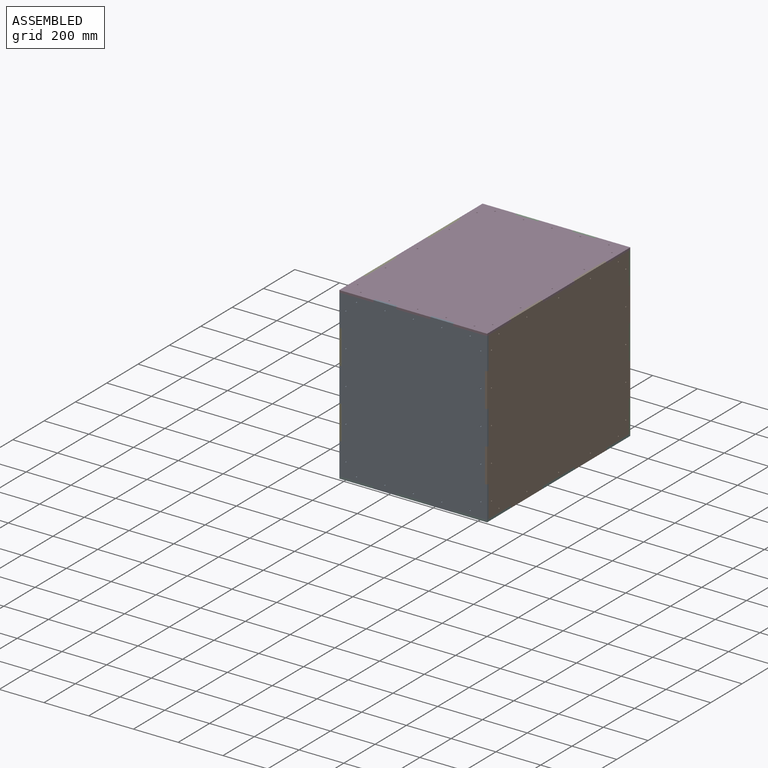
[diagram: assembled view]
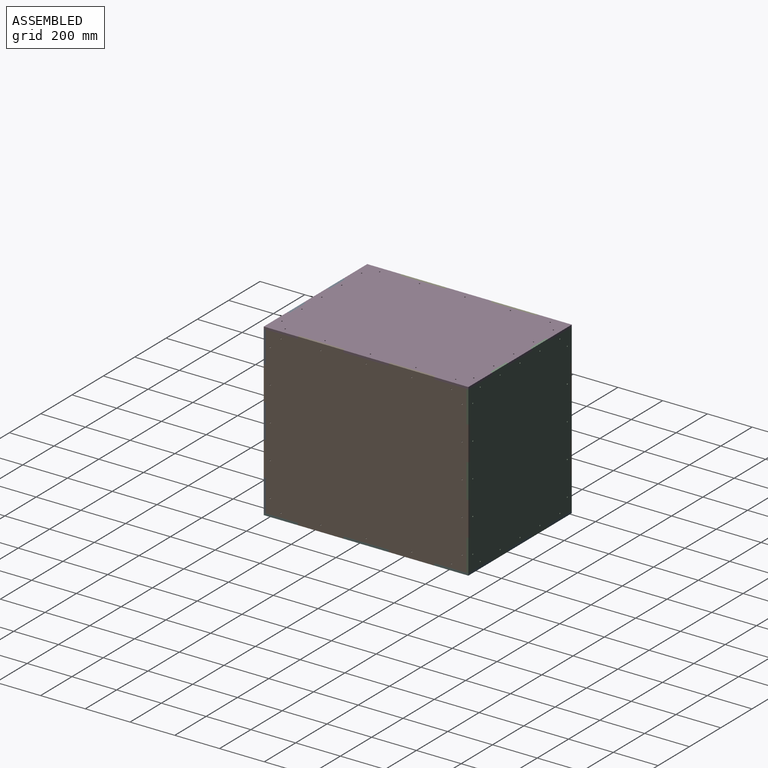
[diagram: assembled view, second angle]
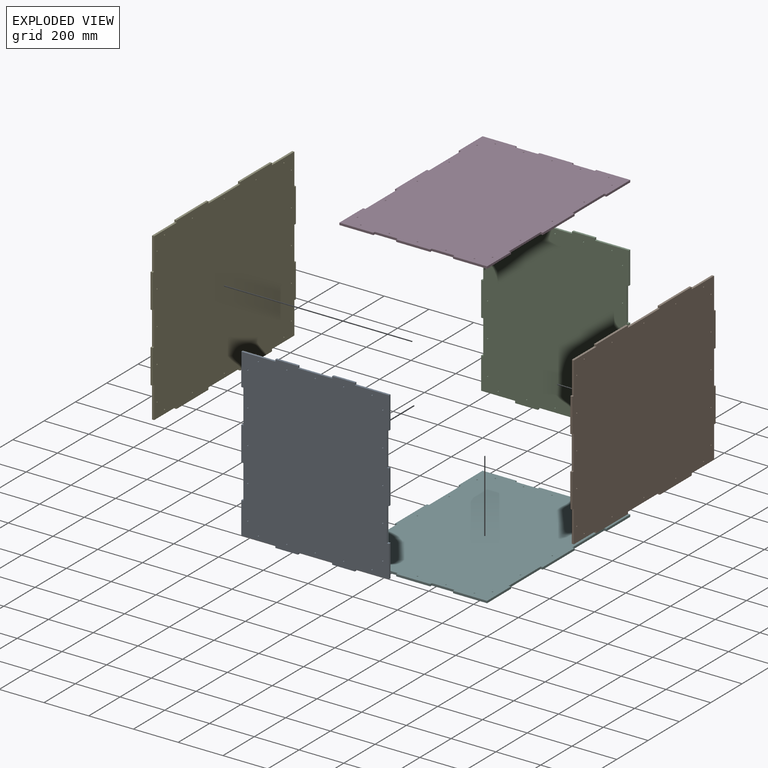
[diagram: exploded view]
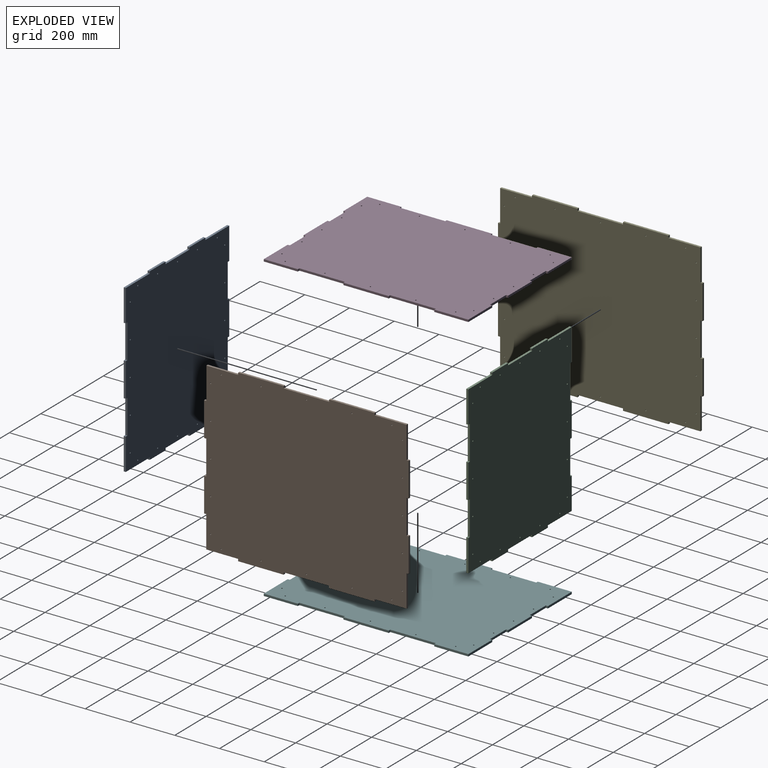
[diagram: exploded view, second angle]
ASSEMBLY  parts=6 mates=3
PART A: 58 faces, bbox 660.4x9.5x762 mm
  f0: plane 152.4x9.53mm, normal (0,0,-1), area 1451.6mm2, adj f1,f55,f56,f57
  f1: plane 9.53x9.53mm, normal (-1,0,0), area 90.7mm2, adj f0,f2,f56,f57
  f2: plane 101.6x9.53mm, normal (0,0,-1), area 967.7mm2, adj f1,f3,f56,f57
  f3: plane 9.53x9.53mm, normal (1,0,0), area 90.7mm2, adj f2,f4,f56,f57
  f4: plane 152.4x9.53mm, normal (0,0,-1), area 1451.6mm2, adj f3,f5,f56,f57
  f5: plane 142.88x9.53mm, normal (1,0,0), area 1360.9mm2, adj f4,f6,f56,f57
  f6: plane 9.53x9.53mm, normal (0,0,1), area 90.7mm2, adj f5,f7,f56,f57
  f7: plane 152.4x9.53mm, normal (1,0,0), area 1451.6mm2, adj f6,f8,f56,f57
  f8: plane 9.53x9.53mm, normal (0,0,-1), area 90.7mm2, adj f7,f9,f56,f57
  f9: plane 152.4x9.53mm, normal (1,0,0), area 1451.6mm2, adj f8,f10,f56,f57
  f10: plane 9.53x9.53mm, normal (0,0,1), area 90.7mm2, adj f9,f11,f56,f57
  f11: plane 152.4x9.53mm, normal (1,0,0), area 1451.6mm2, adj f10,f12,f56,f57
  f12: plane 9.53x9.53mm, normal (0,0,-1), area 90.7mm2, adj f11,f13,f56,f57
  f13: plane 142.88x9.53mm, normal (1,0,0), area 1360.9mm2, adj f12,f14,f56,f57
  f14: plane 152.4x9.53mm, normal (0,0,1), area 1451.6mm2, adj f13,f15,f56,f57
  f15: plane 9.53x9.53mm, normal (1,0,0), area 90.7mm2, adj f14,f16,f56,f57
  f16: plane 101.6x9.53mm, normal (0,0,1), area 967.7mm2, adj f15,f17,f56,f57
  f17: plane 9.53x9.53mm, normal (-1,0,0), area 90.7mm2, adj f16,f18,f56,f57
  f18: plane 152.4x9.53mm, normal (0,0,1), area 1451.6mm2, adj f17,f19,f56,f57
  f19: plane 9.53x9.53mm, normal (1,0,0), area 90.7mm2, adj f18,f20,f56,f57
  f20: plane 101.6x9.53mm, normal (0,0,1), area 967.7mm2, adj f19,f21,f56,f57
  f21: plane 9.53x9.53mm, normal (-1,0,0), area 90.7mm2, adj f20,f22,f56,f57
  f22: plane 152.4x9.53mm, normal (0,0,1), area 1451.6mm2, adj f21,f23,f56,f57
  f23: plane 142.88x9.53mm, normal (-1,0,0), area 1360.9mm2, adj f22,f24,f56,f57
  f24: plane 9.53x9.53mm, normal (0,0,-1), area 90.7mm2, adj f23,f25,f56,f57
  f25: plane 152.4x9.53mm, normal (-1,0,0), area 1451.6mm2, adj f24,f26,f56,f57
  f26: plane 9.53x9.53mm, normal (0,0,1), area 90.7mm2, adj f25,f27,f56,f57
  f27: plane 152.4x9.53mm, normal (-1,0,0), area 1451.6mm2, adj f26,f28,f56,f57
  f28: plane 9.53x9.53mm, normal (0,0,-1), area 90.7mm2, adj f27,f29,f56,f57
  f29: plane 152.4x9.53mm, normal (-1,0,0), area 1451.6mm2, adj f28,f30,f56,f57
  f30: plane 9.53x9.53mm, normal (0,0,1), area 90.7mm2, adj f29,f31,f56,f57
  f31: plane 142.88x9.53mm, normal (-1,0,0), area 1360.9mm2, adj f30,f32,f56,f57
  f32: plane 152.4x9.53mm, normal (0,0,-1), area 1451.6mm2, adj f31,f33,f56,f57
  f33: plane 9.53x9.53mm, normal (-1,0,0), area 90.7mm2, adj f32,f34,f56,f57
  f34: plane 101.6x9.53mm, normal (0,0,-1), area 967.7mm2, adj f33,f55,f56,f57
  f35: cylinder r=2.78mm len=9.53mm, axis (0,-1,0), area 166.3mm2, adj f56,f57
  f36: cylinder r=2.78mm len=9.53mm, axis (0,-1,0), area 166.3mm2, adj f56,f57
  f37: cylinder r=2.78mm len=9.53mm, axis (0,-1,0), area 166.3mm2, adj f56,f57
  f38: cylinder r=2.78mm len=9.53mm, axis (0,-1,0), area 166.3mm2, adj f56,f57
  f39: cylinder r=2.78mm len=9.53mm, axis (0,-1,0), area 166.3mm2, adj f56,f57
  f40: cylinder r=2.78mm len=9.53mm, axis (0,-1,0), area 166.3mm2, adj f56,f57
  f41: cylinder r=2.78mm len=9.53mm, axis (0,-1,0), area 166.3mm2, adj f56,f57
  f42: cylinder r=2.78mm len=9.53mm, axis (0,-1,0), area 166.3mm2, adj f56,f57
  f43: cylinder r=2.78mm len=9.53mm, axis (0,-1,0), area 166.3mm2, adj f56,f57
  f44: cylinder r=2.78mm len=9.53mm, axis (0,-1,0), area 166.3mm2, adj f56,f57
  f45: cylinder r=2.78mm len=9.53mm, axis (0,-1,0), area 166.3mm2, adj f56,f57
  f46: cylinder r=2.78mm len=9.53mm, axis (0,-1,0), area 166.3mm2, adj f56,f57
  f47: cylinder r=2.78mm len=9.53mm, axis (0,-1,0), area 166.3mm2, adj f56,f57
  f48: cylinder r=2.78mm len=9.53mm, axis (0,-1,0), area 166.3mm2, adj f56,f57
  f49: cylinder r=2.78mm len=9.53mm, axis (0,-1,0), area 166.3mm2, adj f56,f57
  f50: cylinder r=2.78mm len=9.53mm, axis (0,-1,0), area 166.3mm2, adj f56,f57
  f51: cylinder r=2.78mm len=9.53mm, axis (0,-1,0), area 166.3mm2, adj f56,f57
  f52: cylinder r=2.78mm len=9.53mm, axis (0,-1,0), area 166.3mm2, adj f56,f57
  f53: cylinder r=2.78mm len=9.53mm, axis (0,-1,0), area 166.3mm2, adj f56,f57
  f54: cylinder r=2.78mm len=9.53mm, axis (0,-1,0), area 166.3mm2, adj f56,f57
  f55: plane 9.53x9.53mm, normal (1,0,0), area 90.7mm2, adj f0,f34,f56,f57
  f56: plane 762x660.4mm, normal (0,1,0), area 488223.8mm2, adj f0,f1,f2,f3,f4,f5,f6,f7
  f57: plane 762x660.4mm, normal (0,-1,0), area 488223.8mm2, adj f0,f1,f2,f3,f4,f5,f6,f7
PART B: 58 faces, bbox 9.5x914.4x762 mm
  f0: plane 142.88x9.53mm, normal (0,0,-1), area 1360.9mm2, adj f1,f54,f56,f57
  f1: plane 9.53x9.53mm, normal (0,-1,0), area 90.7mm2, adj f0,f2,f56,f57
  f2: plane 203.2x9.53mm, normal (0,0,-1), area 1935.5mm2, adj f1,f3,f56,f57
  f3: plane 9.53x9.53mm, normal (0,1,0), area 90.7mm2, adj f2,f4,f56,f57
  f4: plane 203.2x9.53mm, normal (0,0,-1), area 1935.5mm2, adj f3,f5,f56,f57
  f5: plane 9.53x9.53mm, normal (0,-1,0), area 90.7mm2, adj f4,f6,f56,f57
  f6: plane 203.2x9.53mm, normal (0,0,-1), area 1935.5mm2, adj f5,f7,f56,f57
  f7: plane 9.53x9.53mm, normal (0,1,0), area 90.7mm2, adj f6,f8,f56,f57
  f8: plane 142.88x9.53mm, normal (0,0,-1), area 1360.9mm2, adj f7,f9,f56,f57
  f9: plane 142.88x9.53mm, normal (0,1,0), area 1360.9mm2, adj f8,f10,f56,f57
  f10: plane 9.53x9.53mm, normal (0,0,-1), area 90.7mm2, adj f9,f11,f56,f57
  f11: plane 152.4x9.53mm, normal (0,1,0), area 1451.6mm2, adj f10,f12,f56,f57
  f12: plane 9.53x9.53mm, normal (0,0,1), area 90.7mm2, adj f11,f13,f56,f57
  f13: plane 152.4x9.53mm, normal (0,1,0), area 1451.6mm2, adj f12,f14,f56,f57
  f14: plane 9.53x9.53mm, normal (0,0,-1), area 90.7mm2, adj f13,f15,f56,f57
  f15: plane 152.4x9.53mm, normal (0,1,0), area 1451.6mm2, adj f14,f16,f56,f57
  f16: plane 9.53x9.53mm, normal (0,0,1), area 90.7mm2, adj f15,f17,f56,f57
  f17: plane 142.88x9.53mm, normal (0,1,0), area 1360.9mm2, adj f16,f18,f56,f57
  f18: plane 142.88x9.53mm, normal (0,0,1), area 1360.9mm2, adj f17,f19,f56,f57
  f19: plane 9.53x9.53mm, normal (0,1,0), area 90.7mm2, adj f18,f20,f56,f57
  f20: plane 203.2x9.53mm, normal (0,0,1), area 1935.5mm2, adj f19,f21,f56,f57
  f21: plane 9.53x9.53mm, normal (0,-1,0), area 90.7mm2, adj f20,f22,f56,f57
  f22: plane 203.2x9.53mm, normal (0,0,1), area 1935.5mm2, adj f21,f23,f56,f57
  f23: plane 9.53x9.53mm, normal (0,1,0), area 90.7mm2, adj f22,f24,f56,f57
  f24: plane 203.2x9.53mm, normal (0,0,1), area 1935.5mm2, adj f23,f25,f56,f57
  f25: plane 9.53x9.53mm, normal (0,-1,0), area 90.7mm2, adj f24,f26,f56,f57
  f26: plane 142.88x9.53mm, normal (0,0,1), area 1360.9mm2, adj f25,f27,f56,f57
  f27: plane 142.88x9.53mm, normal (0,-1,0), area 1360.9mm2, adj f26,f28,f56,f57
  f28: plane 9.53x9.53mm, normal (0,0,1), area 90.7mm2, adj f27,f29,f56,f57
  f29: plane 152.4x9.53mm, normal (0,-1,0), area 1451.6mm2, adj f28,f30,f56,f57
  f30: plane 9.53x9.53mm, normal (0,0,-1), area 90.7mm2, adj f29,f31,f56,f57
  f31: plane 152.4x9.53mm, normal (0,-1,0), area 1451.6mm2, adj f30,f32,f56,f57
  f32: plane 9.53x9.53mm, normal (0,0,1), area 90.7mm2, adj f31,f33,f56,f57
  f33: plane 152.4x9.53mm, normal (0,-1,0), area 1451.6mm2, adj f32,f34,f56,f57
  f34: plane 9.53x9.53mm, normal (0,0,-1), area 90.7mm2, adj f33,f54,f56,f57
  f35: cylinder r=2.78mm len=9.53mm, axis (-1,0,0), area 166.3mm2, adj f56,f57
  f36: cylinder r=2.78mm len=9.53mm, axis (-1,0,0), area 166.3mm2, adj f56,f57
  f37: cylinder r=2.78mm len=9.53mm, axis (-1,0,0), area 166.3mm2, adj f56,f57
  f38: cylinder r=2.78mm len=9.53mm, axis (-1,0,0), area 166.3mm2, adj f56,f57
  f39: cylinder r=2.78mm len=9.53mm, axis (-1,0,0), area 166.3mm2, adj f56,f57
  f40: cylinder r=2.78mm len=9.53mm, axis (-1,0,0), area 166.3mm2, adj f56,f57
  f41: cylinder r=2.78mm len=9.53mm, axis (-1,0,0), area 166.3mm2, adj f56,f57
  f42: cylinder r=2.78mm len=9.53mm, axis (-1,0,0), area 166.3mm2, adj f56,f57
  f43: cylinder r=2.78mm len=9.53mm, axis (-1,0,0), area 166.3mm2, adj f56,f57
  f44: cylinder r=2.78mm len=9.53mm, axis (-1,0,0), area 166.3mm2, adj f56,f57
  f45: cylinder r=2.78mm len=9.53mm, axis (-1,0,0), area 166.3mm2, adj f56,f57
  f46: cylinder r=2.78mm len=9.53mm, axis (-1,0,0), area 166.3mm2, adj f56,f57
  f47: cylinder r=2.78mm len=9.53mm, axis (-1,0,0), area 166.3mm2, adj f56,f57
  f48: cylinder r=2.78mm len=9.53mm, axis (-1,0,0), area 166.3mm2, adj f56,f57
  f49: cylinder r=2.78mm len=9.53mm, axis (-1,0,0), area 166.3mm2, adj f56,f57
  f50: cylinder r=2.78mm len=9.53mm, axis (-1,0,0), area 166.3mm2, adj f56,f57
  f51: cylinder r=2.78mm len=9.53mm, axis (-1,0,0), area 166.3mm2, adj f56,f57
  f52: cylinder r=2.78mm len=9.53mm, axis (-1,0,0), area 166.3mm2, adj f56,f57
  f53: cylinder r=2.78mm len=9.53mm, axis (-1,0,0), area 166.3mm2, adj f56,f57
  f54: plane 142.88x9.53mm, normal (0,-1,0), area 1360.9mm2, adj f0,f34,f56,f57
  f55: cylinder r=2.78mm len=9.53mm, axis (-1,0,0), area 166.3mm2, adj f56,f57
  f56: plane 914.4x762mm, normal (1,0,0), area 678263.7mm2, adj f0,f1,f2,f3,f4,f5,f6,f7
  f57: plane 914.4x762mm, normal (-1,0,0), area 678263.7mm2, adj f0,f1,f2,f3,f4,f5,f6,f7
PART C: same geometry as A
PART D: 58 faces, bbox 660.4x914.4x9.5 mm
  f0: plane 152.4x9.53mm, normal (-1,0,0), area 1451.6mm2, adj f1,f55,f56,f57
  f1: plane 152.4x9.53mm, normal (0,-1,0), area 1451.6mm2, adj f0,f2,f56,f57
  f2: plane 9.53x9.53mm, normal (1,0,0), area 90.7mm2, adj f1,f3,f56,f57
  f3: plane 101.6x9.53mm, normal (0,-1,0), area 967.7mm2, adj f2,f4,f56,f57
  f4: plane 9.53x9.53mm, normal (-1,0,0), area 90.7mm2, adj f3,f5,f56,f57
  f5: plane 152.4x9.53mm, normal (0,-1,0), area 1451.6mm2, adj f4,f6,f56,f57
  f6: plane 9.53x9.53mm, normal (1,0,0), area 90.7mm2, adj f5,f7,f56,f57
  f7: plane 101.6x9.53mm, normal (0,-1,0), area 967.7mm2, adj f6,f8,f56,f57
  f8: plane 9.53x9.53mm, normal (-1,0,0), area 90.7mm2, adj f7,f9,f56,f57
  f9: plane 152.4x9.53mm, normal (0,-1,0), area 1451.6mm2, adj f8,f10,f56,f57
  f10: plane 152.4x9.53mm, normal (1,0,0), area 1451.6mm2, adj f9,f11,f56,f57
  f11: plane 9.53x9.53mm, normal (0,1,0), area 90.7mm2, adj f10,f12,f56,f57
  f12: plane 203.2x9.53mm, normal (1,0,0), area 1935.5mm2, adj f11,f13,f56,f57
  f13: plane 9.53x9.53mm, normal (0,-1,0), area 90.7mm2, adj f12,f14,f56,f57
  f14: plane 203.2x9.53mm, normal (1,0,0), area 1935.5mm2, adj f13,f15,f56,f57
  f15: plane 9.53x9.53mm, normal (0,1,0), area 90.7mm2, adj f14,f16,f56,f57
  f16: plane 203.2x9.53mm, normal (1,0,0), area 1935.5mm2, adj f15,f17,f56,f57
  f17: plane 9.53x9.53mm, normal (0,-1,0), area 90.7mm2, adj f16,f18,f56,f57
  f18: plane 152.4x9.53mm, normal (1,0,0), area 1451.6mm2, adj f17,f19,f56,f57
  f19: plane 152.4x9.53mm, normal (0,1,0), area 1451.6mm2, adj f18,f20,f56,f57
  f20: plane 9.53x9.53mm, normal (-1,0,0), area 90.7mm2, adj f19,f21,f56,f57
  f21: plane 101.6x9.53mm, normal (0,1,0), area 967.7mm2, adj f20,f22,f56,f57
  f22: plane 9.53x9.53mm, normal (1,0,0), area 90.7mm2, adj f21,f23,f56,f57
  f23: plane 152.4x9.53mm, normal (0,1,0), area 1451.6mm2, adj f22,f24,f56,f57
  f24: plane 9.53x9.53mm, normal (-1,0,0), area 90.7mm2, adj f23,f25,f56,f57
  f25: plane 101.6x9.53mm, normal (0,1,0), area 967.7mm2, adj f24,f26,f56,f57
  f26: plane 9.53x9.53mm, normal (1,0,0), area 90.7mm2, adj f25,f27,f56,f57
  f27: plane 152.4x9.53mm, normal (0,1,0), area 1451.6mm2, adj f26,f28,f56,f57
  f28: plane 152.4x9.53mm, normal (-1,0,0), area 1451.6mm2, adj f27,f29,f56,f57
  f29: plane 9.53x9.53mm, normal (0,-1,0), area 90.7mm2, adj f28,f30,f56,f57
  f30: plane 203.2x9.53mm, normal (-1,0,0), area 1935.5mm2, adj f29,f31,f56,f57
  f31: plane 9.53x9.53mm, normal (0,1,0), area 90.7mm2, adj f30,f32,f56,f57
  f32: plane 203.2x9.53mm, normal (-1,0,0), area 1935.5mm2, adj f31,f33,f56,f57
  f33: plane 9.53x9.53mm, normal (0,-1,0), area 90.7mm2, adj f32,f34,f56,f57
  f34: plane 203.2x9.53mm, normal (-1,0,0), area 1935.5mm2, adj f33,f55,f56,f57
  f35: cylinder r=2.78mm len=9.53mm, axis (0,0,-1), area 166.3mm2, adj f56,f57
  f36: cylinder r=2.78mm len=9.53mm, axis (0,0,-1), area 166.3mm2, adj f56,f57
  f37: cylinder r=2.78mm len=9.53mm, axis (0,0,-1), area 166.3mm2, adj f56,f57
  f38: cylinder r=2.78mm len=9.53mm, axis (0,0,-1), area 166.3mm2, adj f56,f57
  f39: cylinder r=2.78mm len=9.53mm, axis (0,0,-1), area 166.3mm2, adj f56,f57
  f40: cylinder r=2.78mm len=9.53mm, axis (0,0,-1), area 166.3mm2, adj f56,f57
  f41: cylinder r=2.78mm len=9.53mm, axis (0,0,-1), area 166.3mm2, adj f56,f57
  f42: cylinder r=2.78mm len=9.53mm, axis (0,0,-1), area 166.3mm2, adj f56,f57
  f43: cylinder r=2.78mm len=9.53mm, axis (0,0,-1), area 166.3mm2, adj f56,f57
  f44: cylinder r=2.78mm len=9.53mm, axis (0,0,-1), area 166.3mm2, adj f56,f57
  f45: cylinder r=2.78mm len=9.53mm, axis (0,0,-1), area 166.3mm2, adj f56,f57
  f46: cylinder r=2.78mm len=9.53mm, axis (0,0,-1), area 166.3mm2, adj f56,f57
  f47: cylinder r=2.78mm len=9.53mm, axis (0,0,-1), area 166.3mm2, adj f56,f57
  f48: cylinder r=2.78mm len=9.53mm, axis (0,0,-1), area 166.3mm2, adj f56,f57
  f49: cylinder r=2.78mm len=9.53mm, axis (0,0,-1), area 166.3mm2, adj f56,f57
  f50: cylinder r=2.78mm len=9.53mm, axis (0,0,-1), area 166.3mm2, adj f56,f57
  f51: cylinder r=2.78mm len=9.53mm, axis (0,0,-1), area 166.3mm2, adj f56,f57
  f52: cylinder r=2.78mm len=9.53mm, axis (0,0,-1), area 166.3mm2, adj f56,f57
  f53: cylinder r=2.78mm len=9.53mm, axis (0,0,-1), area 166.3mm2, adj f56,f57
  f54: cylinder r=2.78mm len=9.53mm, axis (0,0,-1), area 166.3mm2, adj f56,f57
  f55: plane 9.53x9.53mm, normal (0,1,0), area 90.7mm2, adj f0,f34,f56,f57
  f56: plane 914.4x660.4mm, normal (0,0,1), area 591771.9mm2, adj f0,f1,f2,f3,f4,f5,f6,f7
  f57: plane 914.4x660.4mm, normal (0,0,-1), area 591771.9mm2, adj f0,f1,f2,f3,f4,f5,f6,f7
PART E: same geometry as B
PART F: same geometry as D
PLACE A at identity
PLACE B t=(650.87,0,0)mm
PLACE C t=(0,904.88,0)mm
PLACE D t=(0,0,752.48)mm
PLACE E at identity
PLACE F at identity fixed
MATE fastened C.f32 <-> F.f56  axis (0,0,1) through (0,914.4,9.53)mm
MATE fastened B.f27 <-> A.f56  axis (0,-1,0) through (660.4,9.52,752.48)mm
MATE fastened D.f57 <-> C.f14  axis (0,0,-1) through (660.4,914.4,752.48)mm
